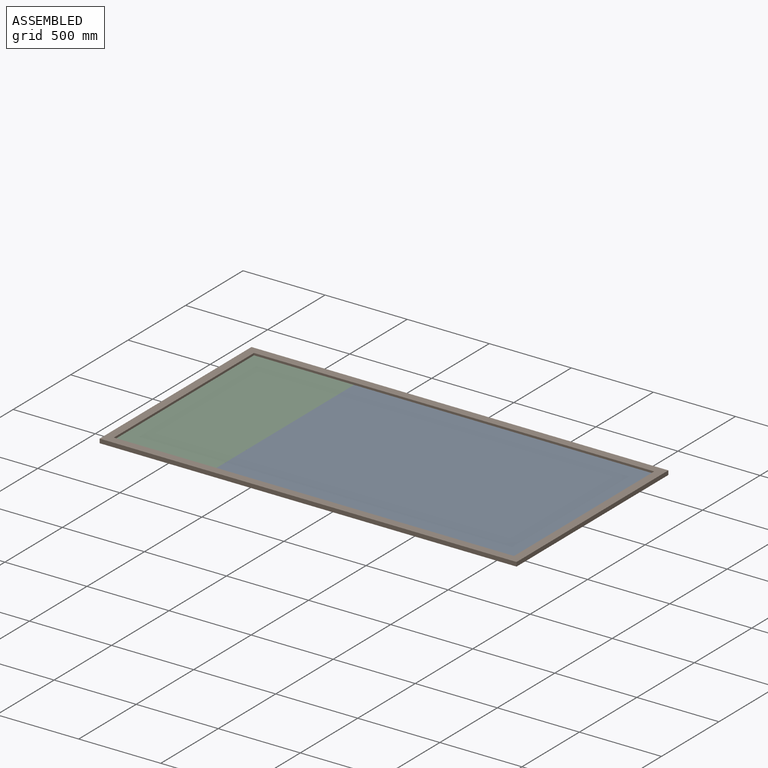
[diagram: assembled view]
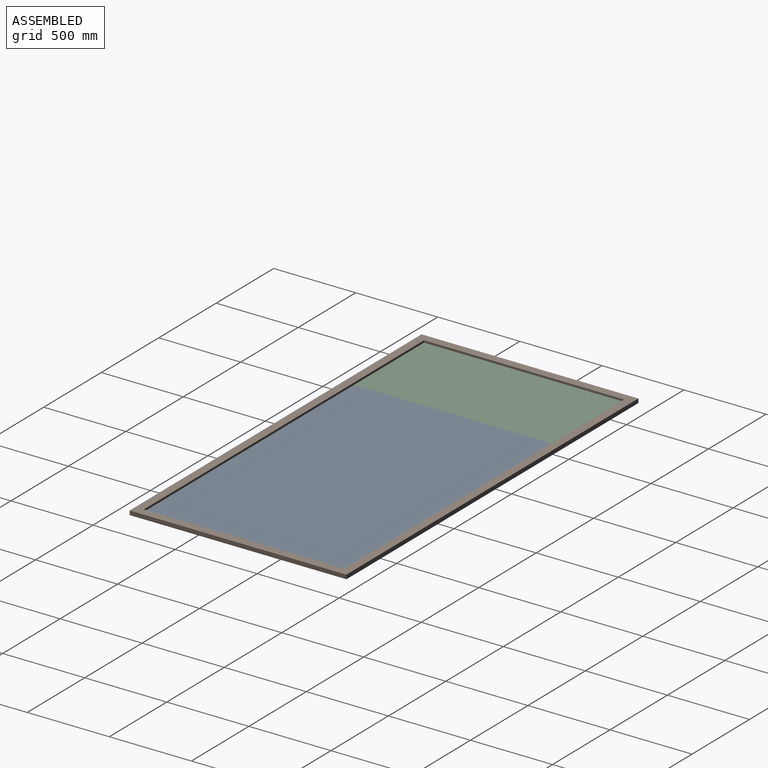
[diagram: assembled view, second angle]
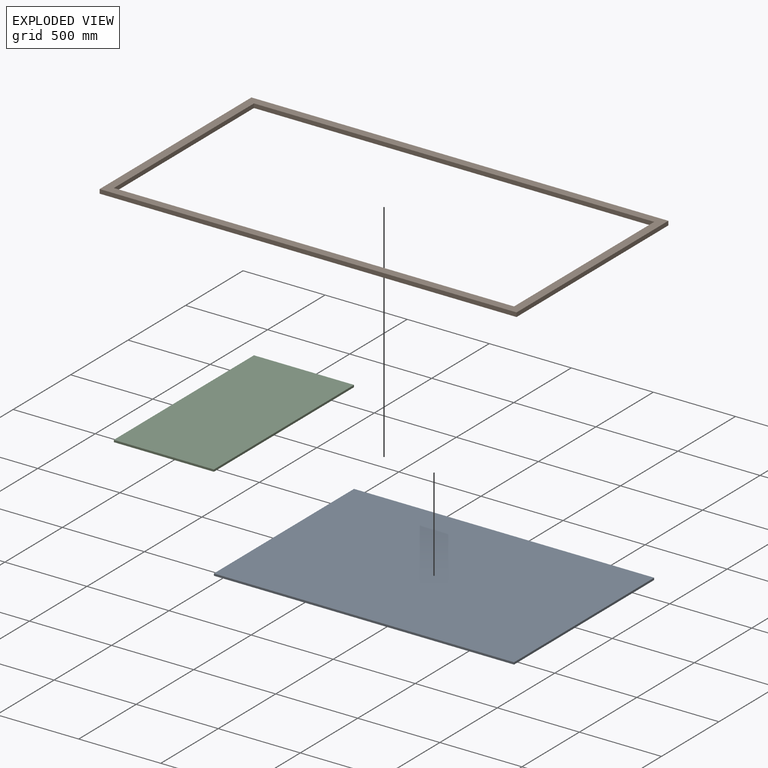
[diagram: exploded view]
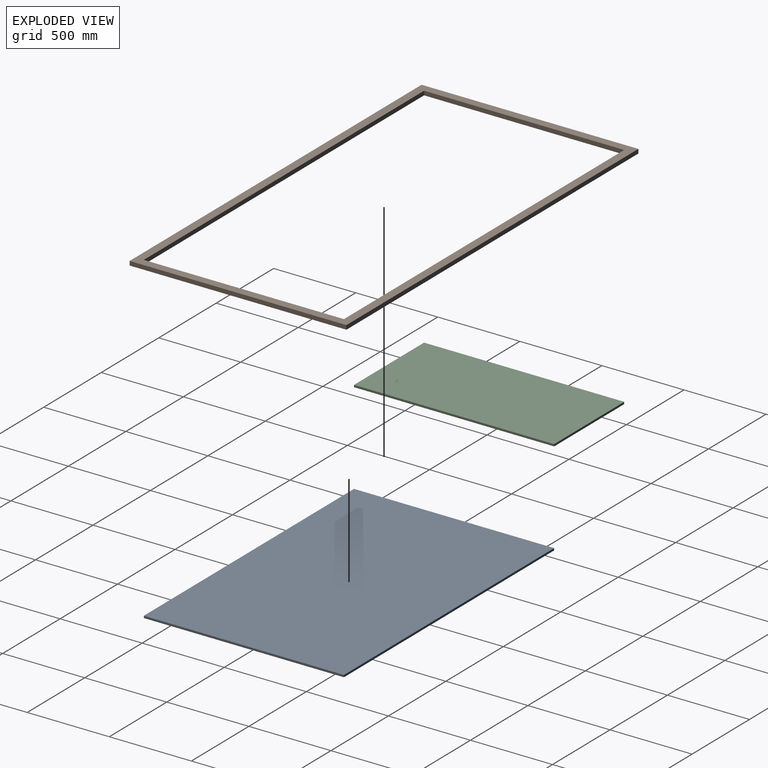
[diagram: exploded view, second angle]
ASSEMBLY  parts=3 mates=6
PART A: 6 faces, bbox 1828.8x1219.2x12.7 mm
  f0: plane 1828.8x12.7mm, normal (0,-1,0), area 23225.8mm2, adj f1,f3,f4,f5
  f1: plane 1219.2x12.7mm, normal (1,0,0), area 15483.8mm2, adj f0,f2,f4,f5
  f2: plane 1828.8x12.7mm, normal (0,1,0), area 23225.8mm2, adj f1,f3,f4,f5
  f3: plane 1219.2x12.7mm, normal (-1,0,0), area 15483.8mm2, adj f0,f2,f4,f5
  f4: plane 1828.8x1219.2mm, normal (0,0,1), area 2229673mm2, adj f0,f1,f2,f3
  f5: plane 1828.8x1219.2mm, normal (0,0,-1), area 2229673mm2, adj f0,f1,f2,f3
PART B: 10 faces, bbox 2540x1320.8x25.4 mm
  f0: plane 2540x25.4mm, normal (0,1,0), area 64516mm2, adj f1,f7,f8,f9
  f1: plane 1320.8x25.4mm, normal (-1,0,0), area 33548.3mm2, adj f0,f2,f8,f9
  f2: plane 2540x25.4mm, normal (0,-1,0), area 64516mm2, adj f1,f7,f8,f9
  f3: plane 1219.2x25.4mm, normal (1,0,0), area 30967.7mm2, adj f4,f6,f8,f9
  f4: plane 2438.4x25.4mm, normal (0,-1,0), area 61935.4mm2, adj f3,f5,f8,f9
  f5: plane 1219.2x25.4mm, normal (-1,0,0), area 30967.7mm2, adj f4,f6,f8,f9
  f6: plane 2438.4x25.4mm, normal (0,1,0), area 61935.4mm2, adj f3,f5,f8,f9
  f7: plane 1320.8x25.4mm, normal (1,0,0), area 33548.3mm2, adj f0,f2,f8,f9
  f8: plane 2540x1320.8mm, normal (0,0,1), area 381934.7mm2, adj f0,f1,f2,f3,f4,f5,f6,f7
  f9: plane 2540x1320.8mm, normal (0,0,-1), area 381934.7mm2, adj f0,f1,f2,f3,f4,f5,f6,f7
PART C: 6 faces, bbox 609.6x1219.2x12.7 mm
  f0: plane 609.6x12.7mm, normal (0,1,0), area 7741.9mm2, adj f1,f3,f4,f5
  f1: plane 1219.2x12.7mm, normal (-1,0,0), area 15483.8mm2, adj f0,f2,f4,f5
  f2: plane 609.6x12.7mm, normal (0,-1,0), area 7741.9mm2, adj f1,f3,f4,f5
  f3: plane 1219.2x12.7mm, normal (1,0,0), area 15483.8mm2, adj f0,f2,f4,f5
  f4: plane 1219.2x609.6mm, normal (0,0,1), area 743224.3mm2, adj f0,f1,f2,f3
  f5: plane 1219.2x609.6mm, normal (0,0,-1), area 743224.3mm2, adj f0,f1,f2,f3
PLACE A t=(914.4,0,-12.7)mm
PLACE B t=(1094.72,-2352.4,-25.4)mm
PLACE C t=(1081.2,-113.18,-12.7)mm
MATE planar B.f9 <-> A.f5  axis (0,0,-1) through (609.6,0,-12.7)mm
MATE planar C.f4 <-> A.f4  axis (0,0,1) through (-304.8,609.6,0)mm
MATE planar C.f3 <-> A.f3  axis (1,0,0) through (0,0,-6.35)mm
MATE planar A.f1 <-> B.f5  axis (1,0,0) through (1828.8,0,-6.35)mm
MATE planar A.f0 <-> B.f6  axis (0,-1,0) through (914.4,-609.6,-6.35)mm
MATE planar C.f2 <-> A.f0  axis (0,-1,0) through (-304.8,-609.6,-6.35)mm
